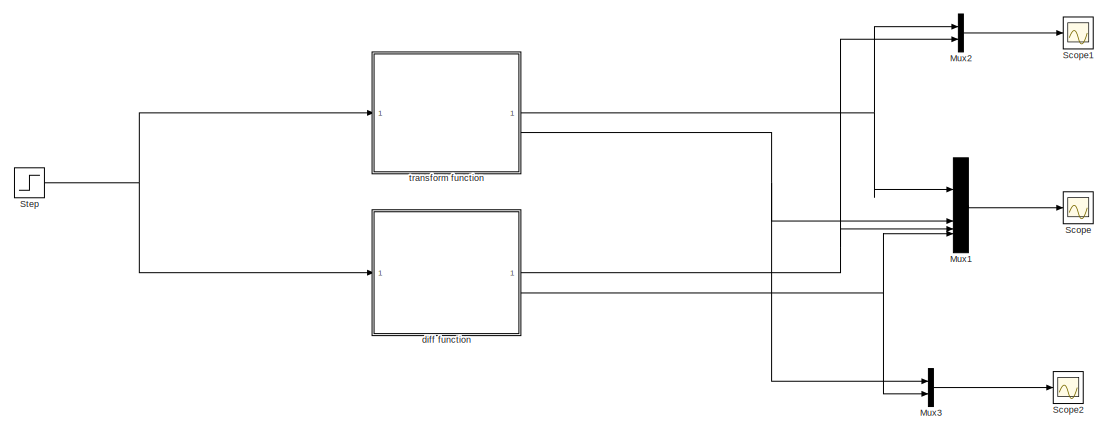
[diagram: root canvas - part 1/2, full width, top band]
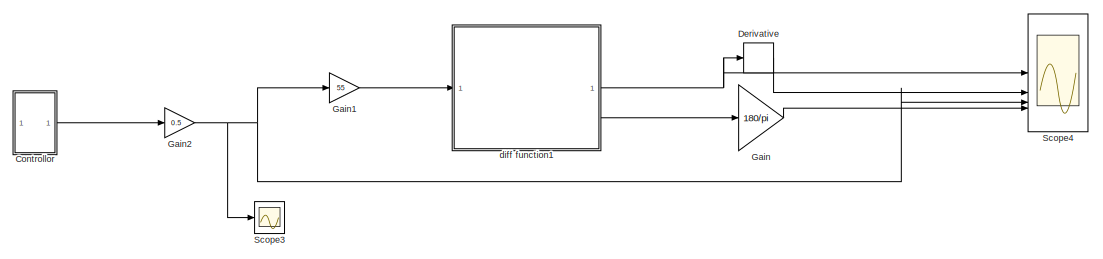
[diagram: root canvas - part 2/2, full width, bottom band]
MODEL slx_101e131b345d
KIND model
CONFIG AbsTol = auto
CONFIG EnableMultiTasking = off
CONFIG FixedStep = 0.0001
CONFIG MaxStep = auto
CONFIG MinStep = auto
CONFIG RelTol = 1e-3
CONFIG SampleTimeConstraint = Unconstrained
CONFIG SolverName = FixedStepAuto
CONFIG StartTime = 0.0
CONFIG StopTime = 10.0
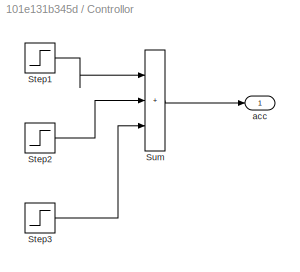
BLOCK [SubSystem] Controllor
BLOCK [Step] Controllor/Step1
  After = 0
  Before = 1
  SampleTime = 0
  Time = 2
BLOCK [Step] Controllor/Step2
  After = -1
  SampleTime = 0
  Time = 5
BLOCK [Step] Controllor/Step3
  SampleTime = 0
  Time = 7
BLOCK [Sum] Controllor/Sum
  IconShape = rectangular
  Inputs = |+++
BLOCK [Outport] Controllor/acc
BLOCK [Derivative] Derivative
BLOCK [Gain] Gain
  Gain = 180/pi
BLOCK [Gain] Gain1
  Gain = 55
BLOCK [Gain] Gain2
  Gain = 0.5
BLOCK [Mux] Mux1
  Commented = on
  DisplayOption = bar
BLOCK [Mux] Mux2
  Commented = on
  DisplayOption = bar
  Inputs = 2
BLOCK [Mux] Mux3
  Commented = on
  DisplayOption = bar
  Inputs = 2
BLOCK [Scope] Scope
  Commented = on
  Floating = off
  NumInputPorts = 1
  ScopeSpecificationString = Simulink.scopes.TimeScopeBlockCfg('CurrentConfiguration', extmgr.ConfigurationSet(extmgr.Configuration('Core','General UI',true),extmgr.Configuration('Core','Source UI',true),extmgr.Configuration('Sources','WiredSimulink',true),extmgr.Configuration('Visuals','Time Domain',true,'SerializedDisplays',{struct('MinYLimReal','-0.11365','MaxYLimReal','1.02289','YLabelReal','','MinYLimMag','0.00000','MaxY...<+1429ch>
BLOCK [Scope] Scope1
  Commented = on
  Floating = off
  NumInputPorts = 1
  ScopeSpecificationString = Simulink.scopes.TimeScopeBlockCfg('CurrentConfiguration', extmgr.ConfigurationSet(extmgr.Configuration('Core','General UI',true),extmgr.Configuration('Core','Source UI',true),extmgr.Configuration('Sources','WiredSimulink',true,'DataLoggingVariableName','ScopeData1'),extmgr.Configuration('Visuals','Time Domain',true,'SerializedDisplays',{struct('MinYLimReal','-0.11352','MaxYLimReal','1.02166','YLab...<+1426ch>
BLOCK [Scope] Scope2
  Commented = on
  Floating = off
  NumInputPorts = 1
  ScopeSpecificationString = Simulink.scopes.TimeScopeBlockCfg('CurrentConfiguration', extmgr.ConfigurationSet(extmgr.Configuration('Core','General UI',true),extmgr.Configuration('Core','Source UI',true),extmgr.Configuration('Sources','WiredSimulink',true,'DataLoggingVariableName','ScopeData2'),extmgr.Configuration('Visuals','Time Domain',true,'SerializedDisplays',{struct('MinYLimReal','-0.00046','MaxYLimReal','0.00417','YLab...<+1423ch>
BLOCK [Scope] Scope3
  Floating = off
  NumInputPorts = 1
  ScopeSpecificationString = Simulink.scopes.TimeScopeBlockCfg('CurrentConfiguration', extmgr.ConfigurationSet(extmgr.Configuration('Core','General UI',true),extmgr.Configuration('Core','Source UI',true),extmgr.Configuration('Sources','WiredSimulink',true,'DataLoggingVariableName','ScopeData3'),extmgr.Configuration('Visuals','Time Domain',true,'SerializedDisplays',{struct('MinYLimReal','-0.625','MaxYLimReal','0.625','YLabelRe...<+1381ch>
BLOCK [Scope] Scope4
  Floating = off
  NumInputPorts = 4
  ScopeSpecificationString = Simulink.scopes.TimeScopeBlockCfg('CurrentConfiguration', extmgr.ConfigurationSet(extmgr.Configuration('Core','General UI',true,'FigureColor',[0 0 0]),extmgr.Configuration('Core','Source UI',true),extmgr.Configuration('Sources','WiredSimulink',true,'DataLoggingVariableName','ScopeData4'),extmgr.Configuration('Visuals','Time Domain',true,'SerializedDisplays',{struct('MinYLimReal','-0.62531','MaxYLi...<+3544ch>
BLOCK [Step] Step
  Commented = on
  SampleTime = 0
  Time = 0
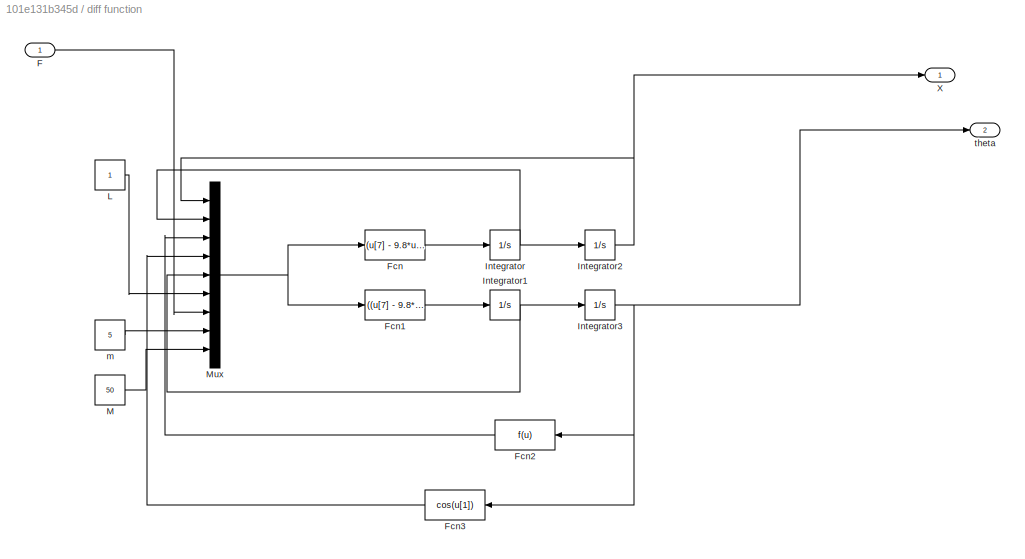
BLOCK [SubSystem] diff function
  Commented = on
BLOCK [Inport] diff function/F
BLOCK [Fcn] diff function/Fcn
  Expr = (u[7] - 9.8*u[8]*u[3]*u[4] -u[8]*u[6]*u[5]*u[5]*u[3])/(u[9] + u[8]*u[3]*u[3])
BLOCK [Fcn] diff function/Fcn1
  Expr = ((u[7] - 9.8*u[8]*u[3]*u[4] -u[8]*u[6]*u[5]*u[5]*u[3])/(u[9] + u[8]*u[3]*u[3]))*u[4]/u[6] - 9.8*u[3]/u[6]
BLOCK [Fcn] diff function/Fcn2
  NameLocation = top
BLOCK [Fcn] diff function/Fcn3
  Expr = cos(u[1])
  NameLocation = top
BLOCK [Integrator] diff function/Integrator
BLOCK [Integrator] diff function/Integrator1
BLOCK [Integrator] diff function/Integrator2
BLOCK [Integrator] diff function/Integrator3
BLOCK [Constant] diff function/L
BLOCK [Constant] diff function/M
  Value = 50
BLOCK [Mux] diff function/Mux
  DisplayOption = bar
  Inputs = 9
BLOCK [Outport] diff function/X
BLOCK [Constant] diff function/m
  Value = 5
BLOCK [Outport] diff function/theta
  Port = 2
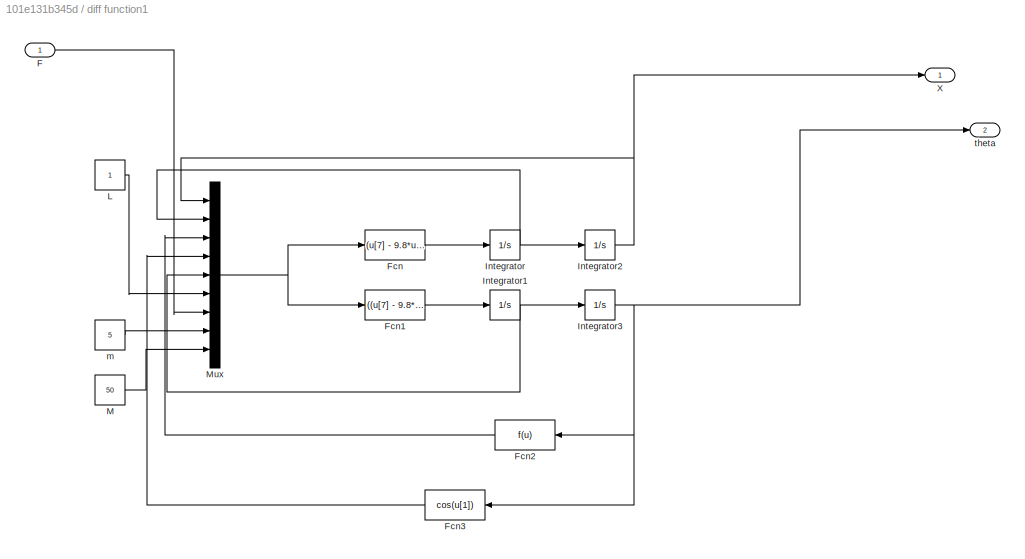
BLOCK [SubSystem] diff function1
BLOCK [Inport] diff function1/F
BLOCK [Fcn] diff function1/Fcn
  Expr = (u[7] - 9.8*u[8]*u[3]*u[4] -u[8]*u[6]*u[5]*u[5]*u[3])/(u[9] + u[8]*u[3]*u[3])
BLOCK [Fcn] diff function1/Fcn1
  Expr = ((u[7] - 9.8*u[8]*u[3]*u[4] -u[8]*u[6]*u[5]*u[5]*u[3])/(u[9] + u[8]*u[3]*u[3]))*u[4]/u[6] - 9.8*u[3]/u[6]
BLOCK [Fcn] diff function1/Fcn2
  NameLocation = top
BLOCK [Fcn] diff function1/Fcn3
  Expr = cos(u[1])
  NameLocation = top
BLOCK [Integrator] diff function1/Integrator
BLOCK [Integrator] diff function1/Integrator1
BLOCK [Integrator] diff function1/Integrator2
BLOCK [Integrator] diff function1/Integrator3
BLOCK [Constant] diff function1/L
BLOCK [Constant] diff function1/M
  Value = 50
BLOCK [Mux] diff function1/Mux
  DisplayOption = bar
  Inputs = 9
BLOCK [Outport] diff function1/X
BLOCK [Constant] diff function1/m
  Value = 5
BLOCK [Outport] diff function1/theta
  Port = 2
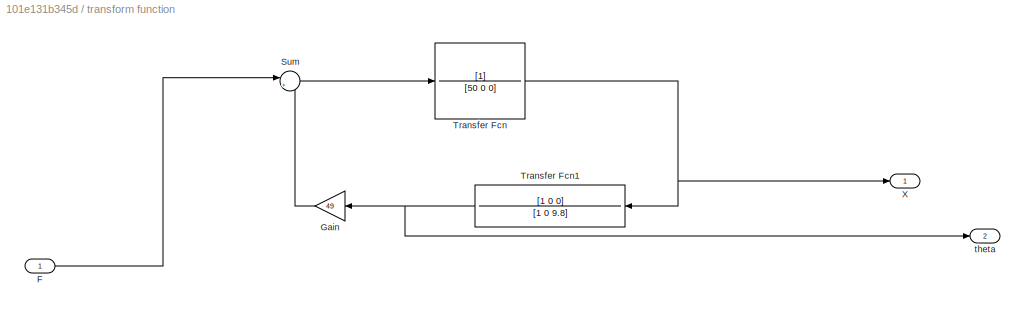
BLOCK [SubSystem] transform function
  Commented = on
BLOCK [Inport] transform function/F
BLOCK [Gain] transform function/Gain
  Gain = 49
  NameLocation = top
BLOCK [Sum] transform function/Sum
  Inputs = |+-
BLOCK [TransferFcn] transform function/Transfer Fcn
  Denominator = [50 0 0]
BLOCK [TransferFcn] transform function/Transfer Fcn1
  Denominator = [1 0 9.8]
  NameLocation = top
  Numerator = [1 0 0]
BLOCK [Outport] transform function/X
BLOCK [Outport] transform function/theta
  Port = 2
LINE Controllor/Step1:1 -> Controllor/Sum:1
LINE Controllor/Step2:1 -> Controllor/Sum:2
LINE Controllor/Step3:1 -> Controllor/Sum:3
LINE Controllor/Sum:1 -> Controllor/acc:1
LINE Controllor:1 -> Gain2:1
LINE Derivative:1 -> Scope4:2
LINE Gain1:1 -> diff function1:1
NET Gain2:1 -> Gain1:1, Scope3:1, Scope4:3
LINE Gain:1 -> Scope4:4
LINE Mux1:1 -> Scope:1
LINE Mux2:1 -> Scope1:1
LINE Mux3:1 -> Scope2:1
NET Step:1 -> diff function:1, transform function:1
LINE diff function/F:1 -> diff function/Mux:7
LINE diff function/Fcn1:1 -> diff function/Integrator1:1
LINE diff function/Fcn2:1 -> diff function/Mux:3
LINE diff function/Fcn3:1 -> diff function/Mux:4
LINE diff function/Fcn:1 -> diff function/Integrator:1
NET diff function/Integrator1:1 -> diff function/Integrator3:1, diff function/Mux:5
NET diff function/Integrator2:1 -> diff function/Mux:1, diff function/X:1
NET diff function/Integrator3:1 -> diff function/Fcn2:1, diff function/Fcn3:1, diff function/theta:1
NET diff function/Integrator:1 -> diff function/Integrator2:1, diff function/Mux:2
LINE diff function/L:1 -> diff function/Mux:6
LINE diff function/M:1 -> diff function/Mux:9
NET diff function/Mux:1 -> diff function/Fcn1:1, diff function/Fcn:1
LINE diff function/m:1 -> diff function/Mux:8
LINE diff function1/F:1 -> diff function1/Mux:7
LINE diff function1/Fcn1:1 -> diff function1/Integrator1:1
LINE diff function1/Fcn2:1 -> diff function1/Mux:3
LINE diff function1/Fcn3:1 -> diff function1/Mux:4
LINE diff function1/Fcn:1 -> diff function1/Integrator:1
NET diff function1/Integrator1:1 -> diff function1/Integrator3:1, diff function1/Mux:5
NET diff function1/Integrator2:1 -> diff function1/Mux:1, diff function1/X:1
NET diff function1/Integrator3:1 -> diff function1/Fcn2:1, diff function1/Fcn3:1, diff function1/theta:1
NET diff function1/Integrator:1 -> diff function1/Integrator2:1, diff function1/Mux:2
LINE diff function1/L:1 -> diff function1/Mux:6
LINE diff function1/M:1 -> diff function1/Mux:9
NET diff function1/Mux:1 -> diff function1/Fcn1:1, diff function1/Fcn:1
LINE diff function1/m:1 -> diff function1/Mux:8
NET diff function1:1 -> Derivative:1, Scope4:1
LINE diff function1:2 -> Gain:1
NET diff function:1 -> Mux1:3, Mux2:2
NET diff function:2 -> Mux1:4, Mux3:2
LINE transform function/F:1 -> transform function/Sum:1
LINE transform function/Gain:1 -> transform function/Sum:2
LINE transform function/Sum:1 -> transform function/Transfer Fcn:1
NET transform function/Transfer Fcn1:1 -> transform function/Gain:1, transform function/theta:1
NET transform function/Transfer Fcn:1 -> transform function/Transfer Fcn1:1, transform function/X:1
NET transform function:1 -> Mux1:1, Mux2:1
NET transform function:2 -> Mux1:2, Mux3:1
note: NET lines group one-source signal fan-out (src -> all destinations, sorted); 1:1 wires keep LINE
